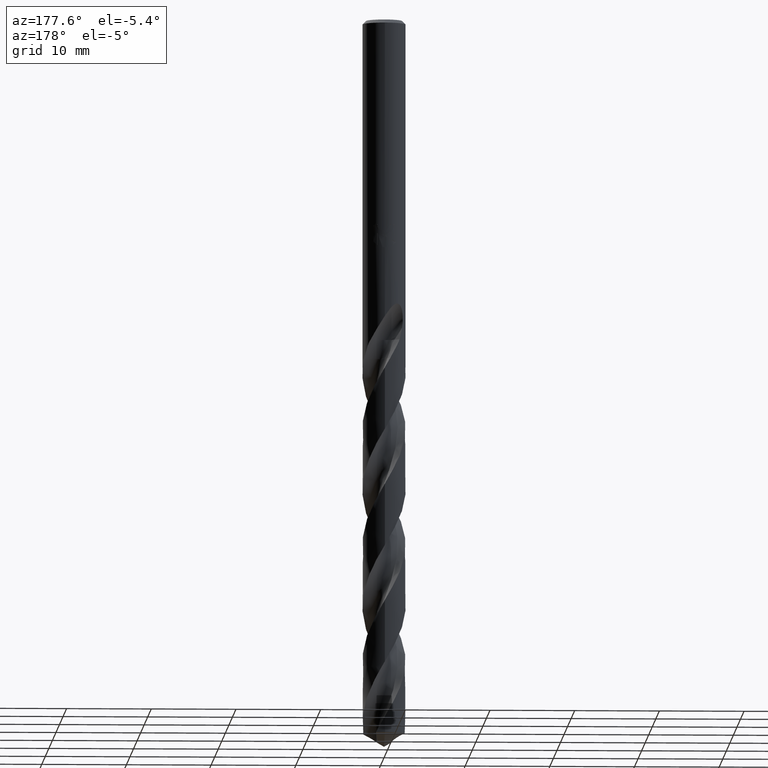
[diagram: clean part render]
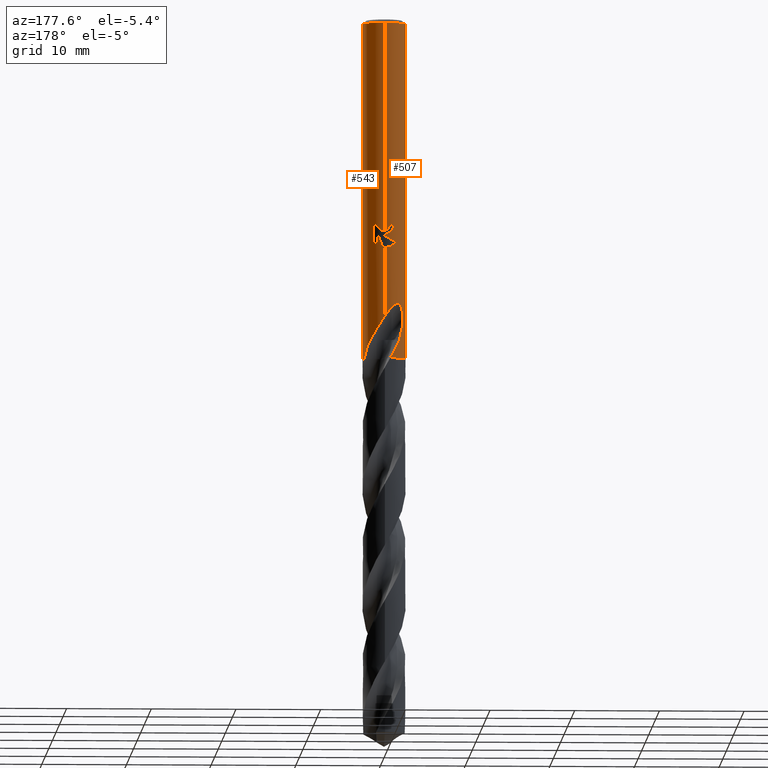
[diagram: same view with one multi-face feature highlighted, each face labeled with its STEP entity id]
A machine part, auxiliary view. The highlighted faces form ONE feature: a constant-radius fillet chain: 2 tangent blend faces with common blend radius 2.55 mm. The faces share edges in the B-rep.
Their STEP definitions:
[1] entity #543 (Cylinder):
#293=VERTEX_POINT('',#832);
#295=VERTEX_POINT('',#834);
#299=EDGE_CURVE('',#295,#651,#838,.T.);
#301=EDGE_CURVE('',#625,#741,#840,.T.);
#303=VERTEX_POINT('',#842);
#317=EDGE_CURVE('',#651,#659,#856,.T.);
#333=VERTEX_POINT('',#877);
#361=EDGE_CURVE('',#333,#561,#907,.T.);
#377=EDGE_CURVE('',#417,#459,#924,.T.);
#379=VERTEX_POINT('',#926);
#417=VERTEX_POINT('',#968);
#457=EDGE_CURVE('',#417,#333,#1013,.T.);
#459=VERTEX_POINT('',#1015);
#465=EDGE_CURVE('',#561,#295,#1021,.T.);
#493=EDGE_CURVE('',#719,#691,#1054,.T.);
#517=EDGE_CURVE('',#731,#293,#1081,.T.);
#543=ADVANCED_FACE('',(#1109),#1110,.T.);
#553=EDGE_CURVE('',#741,#459,#1120,.T.);
#561=VERTEX_POINT('',#1128);
#571=EDGE_CURVE('',#379,#731,#1139,.T.);
#577=VERTEX_POINT('',#1145);
#623=VERTEX_POINT('',#1193);
#625=VERTEX_POINT('',#1195);
#651=VERTEX_POINT('',#1224);
#653=EDGE_CURVE('',#623,#577,#1226,.T.);
#659=VERTEX_POINT('',#1232);
#683=EDGE_CURVE('',#303,#691,#1258,.T.);
#691=VERTEX_POINT('',#1267);
#713=EDGE_CURVE('',#719,#577,#1290,.T.);
#717=EDGE_CURVE('',#659,#623,#1294,.T.);
#719=VERTEX_POINT('',#1296);
#731=VERTEX_POINT('',#1310);
#739=EDGE_CURVE('',#303,#379,#1318,.T.);
#741=VERTEX_POINT('',#1320);
#747=EDGE_CURVE('',#625,#293,#1327,.T.);
#832=CARTESIAN_POINT('',(0.656018928643834,-2.46417109090684,-40.1));
#834=CARTESIAN_POINT('',(0.873560781758956,2.39570272792195,-26.7587351791531));
#838=B_SPLINE_CURVE_WITH_KNOTS('',3,(#1562,#1563,#1564,#1565,#1566,#1567,#1568,#1569),.UNSPECIFIED.,.F.,.F.,(4,2,2,4),(8.27296970472744,8.58870815927253,8.90444661381762,9.54274625815598),.UNSPECIFIED.);
#840=B_SPLINE_CURVE_WITH_KNOTS('',3,(#1572,#1573,#1574,#1575,#1576,#1577,#1578,#1579),.UNSPECIFIED.,.F.,.F.,(4,2,2,4),(0.0,1.32088594608134,1.99224419169783,3.97532380730215),.UNSPECIFIED.);
#842=CARTESIAN_POINT('',(7.57106195499544E-013,-2.55,-35.15000204322));
#856=LINE('',#1736,#1737);
#877=CARTESIAN_POINT('',(0.29010312703583,2.53344433048844,-26.9998328990228));
#907=ELLIPSE('',#2610,7.77238616209292,2.55);
#924=LINE('',#2759,#2760);
#926=CARTESIAN_POINT('',(2.07478751640229,-1.48248330910713,-36.4642704184706));
#968=CARTESIAN_POINT('',(1.0146208194845E-016,2.55,-27.0310253601033));
#1013=B_SPLINE_CURVE_WITH_KNOTS('',3,(#5685,#5686,#5687,#5688,#5689,#5690,#5691,#5692,#5693,#5694,#5695,#5696,#5697,#5698),.UNSPECIFIED.,.F.,.F.,(4,2,2,2,2,2,4),(5.73045896206866,6.37039006809862,6.68816813431113,7.00594620052363,7.32372426673613,7.64150233294864,7.95724082299976),.UNSPECIFIED.);
#1015=CARTESIAN_POINT('',(-7.56218017079844E-013,2.55,-35.15000204322));
#1021=LINE('',#5778,#5779);
#1054=CIRCLE('',#5932,2.55);
#1081=B_SPLINE_CURVE_WITH_KNOTS('',3,(#6189,#6190,#6191,#6192,#6193,#6194,#6195,#6196),.UNSPECIFIED.,.F.,.F.,(4,2,2,4),(0.0,0.717006782918197,1.3745301327303,2.40311813100468),.UNSPECIFIED.);
#1109=FACE_OUTER_BOUND('',#6233,.T.);
#1110=CYLINDRICAL_SURFACE('',#6234,2.55);
#1120=B_SPLINE_CURVE_WITH_KNOTS('',3,(#6263,#6264,#6265,#6266,#6267,#6268,#6269,#6270,#6271,#6272,#6273,#6274,#6275,#6276,#6277,#6278,#6279,#6280,#6281,#6282,#6283,#6284,#6285,#6286,#6287,#6288,#6289,#6290),.UNSPECIFIED.,.F.,.F.,(4,2,2,2,2,2,2,2,2,2,2,2,2,4),(0.0,1.24935961285043,1.93153835635064,2.54942075450046,3.26725165442586,4.12953051732343,4.87688242765254,5.21555645378241,5.46308588244493,5.69732111728528,5.99446247790971,6.42919234259676,7.04721195837792,7.74999240024717),.UNSPECIFIED.);
#1128=CARTESIAN_POINT('',(0.873560781758957,2.39570272792195,-25.3198931596091));
#1139=B_SPLINE_CURVE_WITH_KNOTS('',3,(#6394,#6395,#6396,#6397),.UNSPECIFIED.,.F.,.F.,(4,4),(0.0,1.46553574640604),.UNSPECIFIED.);
#1145=CARTESIAN_POINT('',(-1.16429289846349E-015,2.55,-25.0232688117743));
#1193=CARTESIAN_POINT('',(0.799431726384364,2.42144768988515,-24.000000276873));
#1195=CARTESIAN_POINT('',(2.39978883715491,0.86227231027482,-40.1));
#1224=CARTESIAN_POINT('',(1.33721006514658,2.17125982822662,-26.2901657003257));
#1226=B_SPLINE_CURVE_WITH_KNOTS('',3,(#7580,#7581,#7582,#7583,#7584,#7585,#7586,#7587,#7588,#7589,#7590,#7591,#7592,#7593,#7594,#7595,#7596,#7597,#7598,#7599,#7600,#7601,#7602,#7603,#7604,#7605,#7606),.UNSPECIFIED.,.F.,.F.,(4,2,3,2,2,2,2,2,2,2,2,2,4),(-0.546928008571818,-0.273464004285909,0.0,0.272682226003938,0.545364452007876,0.820193175057678,1.09502189810748,1.3660672093545,1.63711252060152,1.90926984173959,2.18142716287767,2.45309798689982,2.72476881092197),.UNSPECIFIED.);
#1232=CARTESIAN_POINT('',(1.33721006514658,2.17125982822662,-24.5150484364821));
#1258=LINE('',#9582,#9583);
#1267=CARTESIAN_POINT('',(3.12274620224706E-016,-2.55,-0.399999999999999));
#1290=LINE('',#10465,#10466);
#1294=B_SPLINE_CURVE_WITH_KNOTS('',3,(#10471,#10472,#10473,#10474,#10475,#10476,#10477,#10478),.UNSPECIFIED.,.F.,.F.,(4,2,2,4),(0.638299667504419,1.27659933500884,1.59233779963684,1.90807626426484),.UNSPECIFIED.);
#1296=CARTESIAN_POINT('',(0.0,2.55,-0.399999999999999));
#1310=CARTESIAN_POINT('',(1.77244722367009,-1.83328416763583,-37.8606));
#1318=B_SPLINE_CURVE_WITH_KNOTS('',3,(#11290,#11291,#11292,#11293,#11294,#11295,#11296,#11297,#11298,#11299,#11300,#11301,#11302,#11303,#11304,#11305,#11306,#11307,#11308,#11309,#11310,#11311,#11312,#11313,#11314,#11315,#11316,#11317),.UNSPECIFIED.,.F.,.F.,(4,2,2,2,2,2,2,2,2,2,2,2,2,4),(0.0,1.24935961285044,1.93153835635048,2.54942075450004,3.26725165442552,4.12953051732307,4.8768824276522,5.21555645378207,5.46308588244457,5.6973211172849,5.99446247790929,6.42919234259731,7.04721195838079,7.74999240025223),.UNSPECIFIED.);
#1320=CARTESIAN_POINT('',(1.62490083550806,1.96524738258704,-37.8606));
#1327=CIRCLE('',#11327,2.55);
#1562=CARTESIAN_POINT('',(0.602720341406854,2.47774659520589,-26.9040342467484));
#1563=CARTESIAN_POINT('',(0.702624655569435,2.45344452531991,-26.8620422481383));
#1564=CARTESIAN_POINT('',(0.797627132637891,2.42383308165614,-26.8102369555013));
#1565=CARTESIAN_POINT('',(0.972337042330106,2.35918132552788,-26.6919018887118));
#1566=CARTESIAN_POINT('',(1.05205439426646,2.32418204169406,-26.6253643475437));
#1567=CARTESIAN_POINT('',(1.26466285333266,2.21996034781532,-26.4130731353301));
#1568=CARTESIAN_POINT('',(1.38867635719231,2.1411776145583,-26.2340390759421));
#1569=CARTESIAN_POINT('',(1.4725882581066,2.08182223594777,-26.0348217361667));
#1572=CARTESIAN_POINT('',(2.39978883715491,0.862272310274811,-40.1));
#1573=CARTESIAN_POINT('',(2.32445812342853,1.07192511222765,-39.720222498124));
#1574=CARTESIAN_POINT('',(2.22410221491105,1.26496947600276,-39.3577840863991));
#1575=CARTESIAN_POINT('',(2.04503967732465,1.52700728567022,-38.7859420597683));
#1576=CARTESIAN_POINT('',(1.99884309052588,1.58408653444127,-38.6435822846254));
#1577=CARTESIAN_POINT('',(1.88089958909957,1.72741008288669,-38.3043845708463));
#1578=CARTESIAN_POINT('',(1.76995530821957,1.84531381290441,-38.0774165384291));
#1579=CARTESIAN_POINT('',(1.62490083550806,1.96524738258704,-37.8606));
#1736=CARTESIAN_POINT('',(1.33721006514658,2.17125982822662,-25.4026070684039));
#1737=VECTOR('',#12596,1.0);
#2610=AXIS2_PLACEMENT_3D('',#12665,#12666,#12667);
#2759=CARTESIAN_POINT('',(-3.12274620224706E-016,2.55,-37.05));
#2760=VECTOR('',#12678,1.0);
#5685=CARTESIAN_POINT('',(-1.52939254372899,2.04045545091927,-26.0346330793719));
#5686=CARTESIAN_POINT('',(-1.44571516321961,2.10317440439819,-26.2333635916117));
#5687=CARTESIAN_POINT('',(-1.32228848686681,2.18620707421904,-26.4117393689932));
#5688=CARTESIAN_POINT('',(-1.1106896637742,2.29676812751569,-26.6236687551982));
#5689=CARTESIAN_POINT('',(-1.03111920909412,2.33412025797358,-26.6903031851718));
#5690=CARTESIAN_POINT('',(-0.856588263656707,2.40365986538806,-26.8089230655788));
#5691=CARTESIAN_POINT('',(-0.761617234961182,2.4358075958279,-26.860916308323));
#5692=CARTESIAN_POINT('',(-0.561638864282871,2.48953435126709,-26.9453141096912));
#5693=CARTESIAN_POINT('',(-0.456424414236511,2.51113713675704,-26.9777862660452));
#5694=CARTESIAN_POINT('',(-0.242748672564271,2.54070975271748,-27.0207743284381));
#5695=CARTESIAN_POINT('',(-0.13428163925475,2.54866411351335,-27.0312723335086));
#5696=CARTESIAN_POINT('',(0.0768774838957041,2.55101285911495,-27.0312723335086));
#5697=CARTESIAN_POINT('',(0.184832664644226,2.5455501466062,-27.0209060411108));
#5698=CARTESIAN_POINT('',(0.291316102673783,2.5333051392051,-26.9995905689554));
#5778=CARTESIAN_POINT('',(0.873560781758957,2.39570272792195,-26.0393141693811));
#5779=VECTOR('',#12772,1.0);
#5932=AXIS2_PLACEMENT_3D('',#12835,#12836,#12837);
#6189=CARTESIAN_POINT('',(1.77244722367009,-1.83328416763583,-37.8606));
#6190=CARTESIAN_POINT('',(1.69050743906937,-1.91250480690582,-38.0706762784403));
#6191=CARTESIAN_POINT('',(1.6021148243382,-1.98785177567918,-38.2765004901858));
#6192=CARTESIAN_POINT('',(1.40710947719487,-2.12975408567731,-38.6825288037886));
#6193=CARTESIAN_POINT('',(1.30664907754383,-2.19330014961009,-38.8823759599283));
#6194=CARTESIAN_POINT('',(1.02569202446764,-2.34267699692957,-39.4296738293762));
#6195=CARTESIAN_POINT('',(0.844235035154266,-2.41406364138676,-39.7650913667697));
#6196=CARTESIAN_POINT('',(0.656018928643827,-2.46417109090685,-40.1));
#6233=EDGE_LOOP('',(#12904,#12905,#12906,#12907,#12908,#12909,#12910,#12911,#12912,#12913,#12914,#12915,#12916,#12917,#12918,#12919,#12920));
#6234=AXIS2_PLACEMENT_3D('',#12921,#12922,#12923);
#6263=CARTESIAN_POINT('',(1.62490083550806,1.96524738258704,-37.8606));
#6264=CARTESIAN_POINT('',(1.45669338031003,2.10432424227997,-37.505921060011));
#6265=CARTESIAN_POINT('',(1.26329282268803,2.22795392363681,-37.1752460080513));
#6266=CARTESIAN_POINT('',(0.926059863963445,2.37948797834111,-36.6228305933092));
#6267=CARTESIAN_POINT('',(0.804707708838646,2.42307855916641,-36.4284724289745));
#6268=CARTESIAN_POINT('',(0.569785261369433,2.48822620062819,-36.0522453289005));
#6269=CARTESIAN_POINT('',(0.457263904156275,2.5112427100234,-35.8721300689187));
#6270=CARTESIAN_POINT('',(0.213702551379138,2.5444612321252,-35.4839337875907));
#6271=CARTESIAN_POINT('',(0.0806280975477724,2.55226003480914,-35.2728141637524));
#6272=CARTESIAN_POINT('',(-0.214896144172113,2.54604382693197,-34.8211596554812));
#6273=CARTESIAN_POINT('',(-0.390112134702434,2.52681712314374,-34.5641633105317));
#6274=CARTESIAN_POINT('',(-0.727993527751674,2.44917046311251,-34.1403940501317));
#6275=CARTESIAN_POINT('',(-0.914929811528091,2.39001349986102,-33.9336112017254));
#6276=CARTESIAN_POINT('',(-1.19785599497993,2.25327402243575,-33.7399799554091));
#6277=CARTESIAN_POINT('',(-1.29150639456485,2.20165174678138,-33.6921259434389));
#6278=CARTESIAN_POINT('',(-1.45560342999806,2.095360205247,-33.6553654798896));
#6279=CARTESIAN_POINT('',(-1.52290884093068,2.04695423733336,-33.6546790722435));
#6280=CARTESIAN_POINT('',(-1.64826880519653,1.94724804510426,-33.6868521317766));
#6281=CARTESIAN_POINT('',(-1.7030949990296,1.89909194326957,-33.7170172338096));
#6282=CARTESIAN_POINT('',(-1.81466569523409,1.7935616050469,-33.8114003700712));
#6283=CARTESIAN_POINT('',(-1.86628334890514,1.73887313285198,-33.8810853385635));
#6284=CARTESIAN_POINT('',(-1.97201299416663,1.61945684737339,-34.0719044253321));
#6285=CARTESIAN_POINT('',(-2.0225496571707,1.55442613573128,-34.2134357996926));
#6286=CARTESIAN_POINT('',(-2.11758198328297,1.42384528135434,-34.6094248392795));
#6287=CARTESIAN_POINT('',(-2.15193836814656,1.36822411273319,-34.8914429216083));
#6288=CARTESIAN_POINT('',(-2.17390554000001,1.33308696786573,-35.5656944377644));
#6289=CARTESIAN_POINT('',(-2.1583403623475,1.36554816342147,-35.9890449633595));
#6290=CARTESIAN_POINT('',(-2.07478751640229,1.48248330910713,-36.4642704184706));
#6394=CARTESIAN_POINT('',(2.07478751645491,-1.48248330903348,-36.4642704184996));
#6395=CARTESIAN_POINT('',(1.99257761825434,-1.59753895214003,-36.9318681336159));
#6396=CARTESIAN_POINT('',(1.89349271726727,-1.7162555297129,-37.4022485034159));
#6397=CARTESIAN_POINT('',(1.77244722367009,-1.83328416763583,-37.8606));
#7580=CARTESIAN_POINT('',(0.66484748854523,2.46180377304429,-23.8133209150422));
#7581=CARTESIAN_POINT('',(0.728159491121617,2.44470540542922,-23.8766329176186));
#7582=CARTESIAN_POINT('',(0.783374337562283,2.4270015848028,-23.95692161098));
#7583=CARTESIAN_POINT('',(0.857012539634497,2.40198701459577,-24.1338165741014));
#7584=CARTESIAN_POINT('',(0.875400981188567,2.39503092300164,-24.2304873444915));
#7585=CARTESIAN_POINT('',(0.875400981188567,2.39503092300164,-24.3216420125868));
#7586=CARTESIAN_POINT('',(0.875400981188566,2.39503092300164,-24.4125360879214));
#7587=CARTESIAN_POINT('',(0.857116231736908,2.40194678277552,-24.5089516769407));
#7588=CARTESIAN_POINT('',(0.783860176321492,2.42684151535855,-24.6854598734309));
#7589=CARTESIAN_POINT('',(0.728923765407754,2.44446912664062,-24.7656163230698));
#7590=CARTESIAN_POINT('',(0.602432621445338,2.47868945653594,-24.8926460112105));
#7591=CARTESIAN_POINT('',(0.521997424418926,2.49761939924587,-24.9480838383736));
#7592=CARTESIAN_POINT('',(0.344791766469559,2.52818168103565,-25.0220380424342));
#7593=CARTESIAN_POINT('',(0.24796321643811,2.53956818325601,-25.0405166027747));
#7594=CARTESIAN_POINT('',(0.0663483246940969,2.55073729339058,-25.0405166027747));
#7595=CARTESIAN_POINT('',(-0.0298943452179192,2.55136154204061,-25.0224914484988));
#7596=CARTESIAN_POINT('',(-0.206784219328264,2.54314366034012,-24.9492947980859));
#7597=CARTESIAN_POINT('',(-0.287449216744172,2.53456196703142,-24.8941372955426));
#7598=CARTESIAN_POINT('',(-0.415038170156156,2.51682512373737,-24.7668898244719));
#7599=CARTESIAN_POINT('',(-0.470471899261567,2.50650526224512,-24.6861480431406));
#7600=CARTESIAN_POINT('',(-0.544134754870386,2.4915516939521,-24.5088996337151));
#7601=CARTESIAN_POINT('',(-0.562348199187246,2.48722023610111,-24.4123611196328));
#7602=CARTESIAN_POINT('',(-0.562348199187247,2.48722023610111,-24.2310850712461));
#7603=CARTESIAN_POINT('',(-0.544199157556513,2.49153578615267,-24.1347071659171));
#7604=CARTESIAN_POINT('',(-0.470777126670181,2.50644612082315,-23.9577034573528));
#7605=CARTESIAN_POINT('',(-0.415519783397666,2.5167405475754,-23.877045991896));
#7606=CARTESIAN_POINT('',(-0.35179470654391,2.52561685226554,-23.8133209150422));
#9582=CARTESIAN_POINT('',(3.12274620224706E-016,-2.55,-37.05));
#9583=VECTOR('',#13024,1.0);
#10465=CARTESIAN_POINT('',(-3.12274620224706E-016,2.55,-37.05));
#10466=VECTOR('',#13043,1.0);
#10471=CARTESIAN_POINT('',(1.47258826575283,2.08182223053917,-24.7703924137372));
#10472=CARTESIAN_POINT('',(1.38867636175997,2.14117761178973,-24.5711750669516));
#10473=CARTESIAN_POINT('',(1.26466285337017,2.21996034821006,-24.3921410012587));
#10474=CARTESIAN_POINT('',(1.05205438654083,2.32418204527684,-24.1798497817827));
#10475=CARTESIAN_POINT('',(0.972337031916454,2.35918132993624,-24.1133122385005));
#10476=CARTESIAN_POINT('',(0.797627116334371,2.42383308713452,-23.9949771679437));
#10477=CARTESIAN_POINT('',(0.702624636063435,2.45344453104067,-23.9431718736537));
#10478=CARTESIAN_POINT('',(0.60272031855663,2.47774660076429,-23.9011798737145));
#11290=CARTESIAN_POINT('',(-1.62490083550806,-1.96524738258704,-37.8606));
#11291=CARTESIAN_POINT('',(-1.45669338031003,-2.10432424227997,-37.505921060011));
#11292=CARTESIAN_POINT('',(-1.26329282268802,-2.22795392363682,-37.1752460080513));
#11293=CARTESIAN_POINT('',(-0.926059863963478,-2.37948797834109,-36.6228305933093));
#11294=CARTESIAN_POINT('',(-0.804707708838718,-2.42307855916639,-36.4284724289746));
#11295=CARTESIAN_POINT('',(-0.569785261369389,-2.48822620062821,-36.0522453289005));
#11296=CARTESIAN_POINT('',(-0.457263904156182,-2.51124271002341,-35.8721300689185));
#11297=CARTESIAN_POINT('',(-0.213702551379176,-2.54446123212519,-35.4839337875907));
#11298=CARTESIAN_POINT('',(-0.0806280975477904,-2.55226003480915,-35.2728141637524));
#11299=CARTESIAN_POINT('',(0.214896144172117,-2.54604382693197,-34.8211596554812));
#11300=CARTESIAN_POINT('',(0.390112134702434,-2.52681712314374,-34.5641633105317));
#11301=CARTESIAN_POINT('',(0.727993527751679,-2.4491704631125,-34.1403940501317));
#11302=CARTESIAN_POINT('',(0.914929811528093,-2.39001349986102,-33.9336112017254));
#11303=CARTESIAN_POINT('',(1.19785599497992,-2.25327402243575,-33.7399799554091));
#11304=CARTESIAN_POINT('',(1.29150639456485,-2.20165174678138,-33.6921259434389));
#11305=CARTESIAN_POINT('',(1.45560342999805,-2.09536020524701,-33.6553654798896));
#11306=CARTESIAN_POINT('',(1.52290884093068,-2.04695423733336,-33.6546790722435));
#11307=CARTESIAN_POINT('',(1.64826880519653,-1.94724804510426,-33.6868521317766));
#11308=CARTESIAN_POINT('',(1.7030949990296,-1.89909194326958,-33.7170172338096));
#11309=CARTESIAN_POINT('',(1.81466569523409,-1.7935616050469,-33.8114003700712));
#11310=CARTESIAN_POINT('',(1.86628334890514,-1.73887313285198,-33.8810853385635));
#11311=CARTESIAN_POINT('',(1.97201299416678,-1.61945684737322,-34.0719044253324));
#11312=CARTESIAN_POINT('',(2.0225496571708,-1.55442613573115,-34.2134357996931));
#11313=CARTESIAN_POINT('',(2.11758198328291,-1.42384528135442,-34.6094248392793));
#11314=CARTESIAN_POINT('',(2.15193836814655,-1.3682241127332,-34.891442921608));
#11315=CARTESIAN_POINT('',(2.17390554000001,-1.33308696786573,-35.5656944377645));
#11316=CARTESIAN_POINT('',(2.15834036234748,-1.36554816342149,-35.9890449633596));
#11317=CARTESIAN_POINT('',(2.07478751640229,-1.48248330910713,-36.4642704184706));
#11327=AXIS2_PLACEMENT_3D('',#13074,#13075,#13076);
#12596=DIRECTION('',(-0.0,-0.0,1.0));
#12665=CARTESIAN_POINT('',(0.0,0.0,-27.8351219173269));
#12666=DIRECTION('',(0.944648353914092,0.0,-0.328084573619969));
#12667=DIRECTION('',(0.328084573619969,-0.0,0.944648353914092));
#12678=DIRECTION('',(0.0,0.0,-1.0));
#12772=DIRECTION('',(0.0,0.0,-1.0));
#12835=CARTESIAN_POINT('',(0.0,0.0,-0.399999999999999));
#12836=DIRECTION('',(0.0,0.0,-1.0));
#12837=DIRECTION('',(0.0,1.0,0.0));
#12904=ORIENTED_EDGE('',*,*,#713,.F.);
#12905=ORIENTED_EDGE('',*,*,#493,.T.);
#12906=ORIENTED_EDGE('',*,*,#683,.F.);
#12907=ORIENTED_EDGE('',*,*,#739,.T.);
#12908=ORIENTED_EDGE('',*,*,#571,.T.);
#12909=ORIENTED_EDGE('',*,*,#517,.T.);
#12910=ORIENTED_EDGE('',*,*,#747,.F.);
#12911=ORIENTED_EDGE('',*,*,#301,.T.);
#12912=ORIENTED_EDGE('',*,*,#553,.T.);
#12913=ORIENTED_EDGE('',*,*,#377,.F.);
#12914=ORIENTED_EDGE('',*,*,#457,.T.);
#12915=ORIENTED_EDGE('',*,*,#361,.T.);
#12916=ORIENTED_EDGE('',*,*,#465,.T.);
#12917=ORIENTED_EDGE('',*,*,#299,.T.);
#12918=ORIENTED_EDGE('',*,*,#317,.T.);
#12919=ORIENTED_EDGE('',*,*,#717,.T.);
#12920=ORIENTED_EDGE('',*,*,#653,.T.);
#12921=CARTESIAN_POINT('',(0.0,0.0,-37.05));
#12922=DIRECTION('',(-0.0,-0.0,1.0));
#12923=DIRECTION('',(0.0,1.0,0.0));
#13024=DIRECTION('',(-0.0,-0.0,1.0));
#13043=DIRECTION('',(0.0,0.0,-1.0));
#13074=CARTESIAN_POINT('',(0.0,0.0,-40.1));
#13075=DIRECTION('',(0.0,0.0,-1.0));
#13076=DIRECTION('',(0.0,1.0,0.0));
[2] entity #507 (Cylinder):
#303=VERTEX_POINT('',#842);
#335=EDGE_CURVE('',#357,#521,#879,.T.);
#357=VERTEX_POINT('',#903);
#377=EDGE_CURVE('',#417,#459,#924,.T.);
#385=EDGE_CURVE('',#691,#719,#933,.T.);
#395=EDGE_CURVE('',#577,#409,#943,.T.);
#409=VERTEX_POINT('',#959);
#411=EDGE_CURVE('',#591,#797,#961,.T.);
#417=VERTEX_POINT('',#968);
#425=EDGE_CURVE('',#771,#627,#979,.T.);
#459=VERTEX_POINT('',#1015);
#507=ADVANCED_FACE('',(#1069),#1070,.T.);
#509=EDGE_CURVE('',#409,#357,#1072,.T.);
#521=VERTEX_POINT('',#1085);
#545=EDGE_CURVE('',#521,#681,#1112,.T.);
#549=EDGE_CURVE('',#591,#759,#1116,.T.);
#577=VERTEX_POINT('',#1145);
#579=EDGE_CURVE('',#789,#759,#1147,.T.);
#591=VERTEX_POINT('',#1159);
#601=EDGE_CURVE('',#627,#417,#1169,.T.);
#627=VERTEX_POINT('',#1197);
#631=EDGE_CURVE('',#797,#303,#1201,.T.);
#639=EDGE_CURVE('',#805,#789,#1210,.T.);
#673=EDGE_CURVE('',#459,#805,#1247,.T.);
#681=VERTEX_POINT('',#1256);
#683=EDGE_CURVE('',#303,#691,#1258,.T.);
#691=VERTEX_POINT('',#1267);
#713=EDGE_CURVE('',#719,#577,#1290,.T.);
#719=VERTEX_POINT('',#1296);
#759=VERTEX_POINT('',#1341);
#765=EDGE_CURVE('',#681,#771,#1348,.T.);
#771=VERTEX_POINT('',#1354);
#789=VERTEX_POINT('',#1375);
#797=VERTEX_POINT('',#1383);
#805=VERTEX_POINT('',#1392);
#842=CARTESIAN_POINT('',(7.57106195499544E-013,-2.55,-35.15000204322));
#879=CIRCLE('',#2031,2.55);
#903=CARTESIAN_POINT('',(-0.562333990228013,2.48722344863389,-24.3171221986971));
#924=LINE('',#2759,#2760);
#933=CIRCLE('',#3175,2.55);
#943=B_SPLINE_CURVE_WITH_KNOTS('',3,(#3331,#3332,#3333,#3334,#3335,#3336,#3337,#3338,#3339,#3340,#3341,#3342,#3343,#3344,#3345,#3346,#3347,#3348,#3349,#3350,#3351,#3352,#3353,#3354,#3355,#3356,#3357),.UNSPECIFIED.,.F.,.F.,(4,2,3,2,2,2,2,2,2,2,2,2,4),(-0.546928008571818,-0.273464004285909,0.0,0.272682226003938,0.545364452007876,0.820193175057678,1.09502189810748,1.3660672093545,1.63711252060152,1.90926984173959,2.18142716287767,2.45309798689982,2.72476881092197),.UNSPECIFIED.);
#959=CARTESIAN_POINT('',(-0.486378944383046,2.50318507555091,-24.6432837483006));
#961=B_SPLINE_CURVE_WITH_KNOTS('',3,(#3907,#3908,#3909,#3910,#3911,#3912,#3913,#3914),.UNSPECIFIED.,.F.,.F.,(4,2,2,4),(0.0,1.32088594534775,1.99224419083507,3.97532379312663),.UNSPECIFIED.);
#968=CARTESIAN_POINT('',(1.0146208194845E-016,2.55,-27.0310253601033));
#979=ELLIPSE('',#5254,2.84306750170929,2.55);
#1015=CARTESIAN_POINT('',(-7.56218017079844E-013,2.55,-35.15000204322));
#1069=FACE_OUTER_BOUND('',#6023,.T.);
#1070=CYLINDRICAL_SURFACE('',#6024,2.55);
#1072=B_SPLINE_CURVE_WITH_KNOTS('',3,(#6027,#6028,#6029,#6030,#6031,#6032,#6033,#6034,#6035,#6036,#6037,#6038,#6039,#6040,#6041,#6042,#6043,#6044,#6045,#6046,#6047,#6048,#6049,#6050,#6051,#6052,#6053),.UNSPECIFIED.,.F.,.F.,(4,2,3,2,2,2,2,2,2,2,2,2,4),(-0.546928008571818,-0.273464004285909,0.0,0.272682226003938,0.545364452007876,0.820193175057678,1.09502189810748,1.3660672093545,1.63711252060152,1.90926984173959,2.18142716287767,2.45309798689982,2.72476881092197),.UNSPECIFIED.);
#1085=CARTESIAN_POINT('',(-1.0350734039088,2.33047700021276,-24.3171221986971));
#1112=B_SPLINE_CURVE_WITH_KNOTS('',3,(#6237,#6238,#6239,#6240,#6241,#6242,#6243,#6244,#6245,#6246,#6247,#6248,#6249,#6250,#6251,#6252),.UNSPECIFIED.,.F.,.F.,(4,2,2,2,2,2,2,4),(3.40456646310992,3.63093216842028,3.85729787373065,4.08366357904102,4.53639498966175,4.98511114005673,5.43382729045171,5.89282539333501),.UNSPECIFIED.);
#1116=CIRCLE('',#6258,2.55);
#1145=CARTESIAN_POINT('',(-1.16429289846349E-015,2.55,-25.0232688117743));
#1147=B_SPLINE_CURVE_WITH_KNOTS('',3,(#6408,#6409,#6410,#6411,#6412,#6413,#6414,#6415),.UNSPECIFIED.,.F.,.F.,(4,2,2,4),(0.0,0.717006782895492,1.37453013216197,2.40311813146102),.UNSPECIFIED.);
#1159=CARTESIAN_POINT('',(-2.3997888371549,-0.86227231027484,-40.1));
#1169=B_SPLINE_CURVE_WITH_KNOTS('',3,(#6609,#6610,#6611,#6612,#6613,#6614,#6615,#6616,#6617,#6618,#6619,#6620,#6621,#6622),.UNSPECIFIED.,.F.,.F.,(4,2,2,2,2,2,4),(5.73045896206866,6.37039006809862,6.68816813431113,7.00594620052363,7.32372426673613,7.64150233294864,7.95724082299976),.UNSPECIFIED.);
#1197=CARTESIAN_POINT('',(-1.337052752443,2.17135670427146,-26.3720803908795));
#1201=B_SPLINE_CURVE_WITH_KNOTS('',3,(#6709,#6710,#6711,#6712,#6713,#6714,#6715,#6716,#6717,#6718,#6719,#6720,#6721,#6722,#6723,#6724,#6725,#6726,#6727,#6728,#6729,#6730,#6731,#6732,#6733,#6734,#6735,#6736),.UNSPECIFIED.,.F.,.F.,(4,2,2,2,2,2,2,2,2,2,2,2,2,4),(0.0,1.24935961285044,1.93153835635048,2.54942075450004,3.26725165442552,4.12953051732307,4.8768824276522,5.21555645378207,5.46308588244457,5.6973211172849,5.99446247790929,6.42919234259731,7.04721195838079,7.74999240025223),.UNSPECIFIED.);
#1210=B_SPLINE_CURVE_WITH_KNOTS('',3,(#7531,#7532,#7533,#7534),.UNSPECIFIED.,.F.,.F.,(4,4),(0.0,1.46553574640604),.UNSPECIFIED.);
#1247=B_SPLINE_CURVE_WITH_KNOTS('',3,(#8761,#8762,#8763,#8764,#8765,#8766,#8767,#8768,#8769,#8770,#8771,#8772,#8773,#8774,#8775,#8776,#8777,#8778,#8779,#8780,#8781,#8782,#8783,#8784,#8785,#8786,#8787,#8788),.UNSPECIFIED.,.F.,.F.,(4,2,2,2,2,2,2,2,2,2,2,2,2,4),(0.0,1.24935961285043,1.93153835635064,2.54942075450046,3.26725165442586,4.12953051732343,4.87688242765254,5.21555645378241,5.46308588244493,5.69732111728528,5.99446247790971,6.42919234259676,7.04721195837792,7.74999240024717),.UNSPECIFIED.);
#1256=CARTESIAN_POINT('',(-5.89297921147403E-017,2.55,-25.5000801551881));
#1258=LINE('',#9582,#9583);
#1267=CARTESIAN_POINT('',(3.12274620224706E-016,-2.55,-0.399999999999999));
#1290=LINE('',#10465,#10466);
#1296=CARTESIAN_POINT('',(0.0,2.55,-0.399999999999999));
#1341=CARTESIAN_POINT('',(-0.656018928643821,2.46417109090684,-40.1));
#1348=LINE('',#11760,#11761);
#1354=CARTESIAN_POINT('',(-3.12274620224706E-016,2.55,-25.7128911336578));
#1375=CARTESIAN_POINT('',(-1.77244722367009,1.83328416763583,-37.8606));
#1383=CARTESIAN_POINT('',(-1.62490083550806,-1.96524738258704,-37.8606));
#1392=CARTESIAN_POINT('',(-2.07478751640229,1.48248330910713,-36.4642704184706));
#2031=AXIS2_PLACEMENT_3D('',#12638,#12639,#12640);
#2759=CARTESIAN_POINT('',(-3.12274620224706E-016,2.55,-37.05));
#2760=VECTOR('',#12678,1.0);
#3175=AXIS2_PLACEMENT_3D('',#12685,#12686,#12687);
#3331=CARTESIAN_POINT('',(0.66484748854523,2.46180377304429,-23.8133209150422));
#3332=CARTESIAN_POINT('',(0.728159491121617,2.44470540542922,-23.8766329176186));
#3333=CARTESIAN_POINT('',(0.783374337562283,2.4270015848028,-23.95692161098));
#3334=CARTESIAN_POINT('',(0.857012539634497,2.40198701459577,-24.1338165741014));
#3335=CARTESIAN_POINT('',(0.875400981188567,2.39503092300164,-24.2304873444915));
#3336=CARTESIAN_POINT('',(0.875400981188567,2.39503092300164,-24.3216420125868));
#3337=CARTESIAN_POINT('',(0.875400981188566,2.39503092300164,-24.4125360879214));
#3338=CARTESIAN_POINT('',(0.857116231736908,2.40194678277552,-24.5089516769407));
#3339=CARTESIAN_POINT('',(0.783860176321492,2.42684151535855,-24.6854598734309));
#3340=CARTESIAN_POINT('',(0.728923765407754,2.44446912664062,-24.7656163230698));
#3341=CARTESIAN_POINT('',(0.602432621445338,2.47868945653594,-24.8926460112105));
#3342=CARTESIAN_POINT('',(0.521997424418926,2.49761939924587,-24.9480838383736));
#3343=CARTESIAN_POINT('',(0.344791766469559,2.52818168103565,-25.0220380424342));
#3344=CARTESIAN_POINT('',(0.24796321643811,2.53956818325601,-25.0405166027747));
#3345=CARTESIAN_POINT('',(0.0663483246940969,2.55073729339058,-25.0405166027747));
#3346=CARTESIAN_POINT('',(-0.0298943452179192,2.55136154204061,-25.0224914484988));
#3347=CARTESIAN_POINT('',(-0.206784219328264,2.54314366034012,-24.9492947980859));
#3348=CARTESIAN_POINT('',(-0.287449216744172,2.53456196703142,-24.8941372955426));
#3349=CARTESIAN_POINT('',(-0.415038170156156,2.51682512373737,-24.7668898244719));
#3350=CARTESIAN_POINT('',(-0.470471899261567,2.50650526224512,-24.6861480431406));
#3351=CARTESIAN_POINT('',(-0.544134754870386,2.4915516939521,-24.5088996337151));
#3352=CARTESIAN_POINT('',(-0.562348199187246,2.48722023610111,-24.4123611196328));
#3353=CARTESIAN_POINT('',(-0.562348199187247,2.48722023610111,-24.2310850712461));
#3354=CARTESIAN_POINT('',(-0.544199157556513,2.49153578615267,-24.1347071659171));
#3355=CARTESIAN_POINT('',(-0.470777126670181,2.50644612082315,-23.9577034573528));
#3356=CARTESIAN_POINT('',(-0.415519783397666,2.5167405475754,-23.877045991896));
#3357=CARTESIAN_POINT('',(-0.35179470654391,2.52561685226554,-23.8133209150422));
#3907=CARTESIAN_POINT('',(-2.3997888371549,-0.86227231027484,-40.1));
#3908=CARTESIAN_POINT('',(-2.32445812347036,-1.07192511211125,-39.7202224983349));
#3909=CARTESIAN_POINT('',(-2.2241022149927,-1.26496947588302,-39.3577840866601));
#3910=CARTESIAN_POINT('',(-2.04503967726283,-1.52700728576085,-38.7859420595706));
#3911=CARTESIAN_POINT('',(-1.99884309049238,-1.58408653449101,-38.6435822844818));
#3912=CARTESIAN_POINT('',(-1.88089958898856,-1.72741008299485,-38.3043845706666));
#3913=CARTESIAN_POINT('',(-1.76995530812565,-1.84531381298206,-38.0774165382887));
#3914=CARTESIAN_POINT('',(-1.62490083550806,-1.96524738258704,-37.8606));
#5254=AXIS2_PLACEMENT_3D('',#12732,#12733,#12734);
#6023=EDGE_LOOP('',(#12852,#12853,#12854,#12855,#12856,#12857,#12858,#12859,#12860,#12861,#12862,#12863,#12864,#12865,#12866,#12867,#12868));
#6024=AXIS2_PLACEMENT_3D('',#12869,#12870,#12871);
#6027=CARTESIAN_POINT('',(0.66484748854523,2.46180377304429,-23.8133209150422));
#6028=CARTESIAN_POINT('',(0.728159491121617,2.44470540542922,-23.8766329176186));
#6029=CARTESIAN_POINT('',(0.783374337562283,2.4270015848028,-23.95692161098));
#6030=CARTESIAN_POINT('',(0.857012539634497,2.40198701459577,-24.1338165741014));
#6031=CARTESIAN_POINT('',(0.875400981188567,2.39503092300164,-24.2304873444915));
#6032=CARTESIAN_POINT('',(0.875400981188567,2.39503092300164,-24.3216420125868));
#6033=CARTESIAN_POINT('',(0.875400981188566,2.39503092300164,-24.4125360879214));
#6034=CARTESIAN_POINT('',(0.857116231736908,2.40194678277552,-24.5089516769407));
#6035=CARTESIAN_POINT('',(0.783860176321492,2.42684151535855,-24.6854598734309));
#6036=CARTESIAN_POINT('',(0.728923765407754,2.44446912664062,-24.7656163230698));
#6037=CARTESIAN_POINT('',(0.602432621445338,2.47868945653594,-24.8926460112105));
#6038=CARTESIAN_POINT('',(0.521997424418926,2.49761939924587,-24.9480838383736));
#6039=CARTESIAN_POINT('',(0.344791766469559,2.52818168103565,-25.0220380424342));
#6040=CARTESIAN_POINT('',(0.24796321643811,2.53956818325601,-25.0405166027747));
#6041=CARTESIAN_POINT('',(0.0663483246940969,2.55073729339058,-25.0405166027747));
#6042=CARTESIAN_POINT('',(-0.0298943452179192,2.55136154204061,-25.0224914484988));
#6043=CARTESIAN_POINT('',(-0.206784219328264,2.54314366034012,-24.9492947980859));
#6044=CARTESIAN_POINT('',(-0.287449216744172,2.53456196703142,-24.8941372955426));
#6045=CARTESIAN_POINT('',(-0.415038170156156,2.51682512373737,-24.7668898244719));
#6046=CARTESIAN_POINT('',(-0.470471899261567,2.50650526224512,-24.6861480431406));
#6047=CARTESIAN_POINT('',(-0.544134754870386,2.4915516939521,-24.5088996337151));
#6048=CARTESIAN_POINT('',(-0.562348199187246,2.48722023610111,-24.4123611196328));
#6049=CARTESIAN_POINT('',(-0.562348199187247,2.48722023610111,-24.2310850712461));
#6050=CARTESIAN_POINT('',(-0.544199157556513,2.49153578615267,-24.1347071659171));
#6051=CARTESIAN_POINT('',(-0.470777126670181,2.50644612082315,-23.9577034573528));
#6052=CARTESIAN_POINT('',(-0.415519783397666,2.5167405475754,-23.877045991896));
#6053=CARTESIAN_POINT('',(-0.35179470654391,2.52561685226554,-23.8133209150422));
#6237=CARTESIAN_POINT('',(-1.01251390159901,2.34036655228807,-24.0961877081597));
#6238=CARTESIAN_POINT('',(-1.02777548677533,2.33376392547324,-24.1731522798183));
#6239=CARTESIAN_POINT('',(-1.03510901790186,2.33046118205351,-24.2508466256293));
#6240=CARTESIAN_POINT('',(-1.03510901790186,2.33046118205351,-24.4017570958362));
#6241=CARTESIAN_POINT('',(-1.02777548677533,2.33376392547324,-24.4794514416473));
#6242=CARTESIAN_POINT('',(-0.997252316422689,2.3469691791029,-24.6333805849645));
#6243=CARTESIAN_POINT('',(-0.974073182599157,2.35685305237043,-24.7096190636835));
#6244=CARTESIAN_POINT('',(-0.882702881811928,2.39324771111563,-24.9282489707792));
#6245=CARTESIAN_POINT('',(-0.791523914881433,2.42649116428006,-25.0604235350961));
#6246=CARTESIAN_POINT('',(-0.582607281733028,2.48490012415617,-25.2683465468797));
#6247=CARTESIAN_POINT('',(-0.450698277714345,2.51411725520493,-25.3587739185454));
#6248=CARTESIAN_POINT('',(-0.160131103535409,2.54917095178093,-25.479327832674));
#6249=CARTESIAN_POINT('',(-0.00136230971375423,2.55438249725698,-25.5093686300866));
#6250=CARTESIAN_POINT('',(0.300699355998913,2.53682650250196,-25.5093686300866));
#6251=CARTESIAN_POINT('',(0.461082316825695,2.51245081783262,-25.4780790302888));
#6252=CARTESIAN_POINT('',(0.606793074483244,2.47675234223351,-25.4167683329767));
#6258=AXIS2_PLACEMENT_3D('',#12927,#12928,#12929);
#6408=CARTESIAN_POINT('',(-1.77244722367009,1.83328416763583,-37.8606));
#6409=CARTESIAN_POINT('',(-1.69050743907197,1.91250480690331,-38.0706762784336));
#6410=CARTESIAN_POINT('',(-1.6021148243409,1.98785177567722,-38.2765004901802));
#6411=CARTESIAN_POINT('',(-1.40710947726685,2.12975408562493,-38.6825288036388));
#6412=CARTESIAN_POINT('',(-1.30664907772744,2.19330014949207,-38.8823759595574));
#6413=CARTESIAN_POINT('',(-1.02569202470559,2.34267699683498,-39.4296738289333));
#6414=CARTESIAN_POINT('',(-0.844235035282798,2.41406364135253,-39.765091366541));
#6415=CARTESIAN_POINT('',(-0.656018928643816,2.46417109090684,-40.1));
#6609=CARTESIAN_POINT('',(-1.52939254372899,2.04045545091927,-26.0346330793719));
#6610=CARTESIAN_POINT('',(-1.44571516321961,2.10317440439819,-26.2333635916117));
#6611=CARTESIAN_POINT('',(-1.32228848686681,2.18620707421904,-26.4117393689932));
#6612=CARTESIAN_POINT('',(-1.1106896637742,2.29676812751569,-26.6236687551982));
#6613=CARTESIAN_POINT('',(-1.03111920909412,2.33412025797358,-26.6903031851718));
#6614=CARTESIAN_POINT('',(-0.856588263656707,2.40365986538806,-26.8089230655788));
#6615=CARTESIAN_POINT('',(-0.761617234961182,2.4358075958279,-26.860916308323));
#6616=CARTESIAN_POINT('',(-0.561638864282871,2.48953435126709,-26.9453141096912));
#6617=CARTESIAN_POINT('',(-0.456424414236511,2.51113713675704,-26.9777862660452));
#6618=CARTESIAN_POINT('',(-0.242748672564271,2.54070975271748,-27.0207743284381));
#6619=CARTESIAN_POINT('',(-0.13428163925475,2.54866411351335,-27.0312723335086));
#6620=CARTESIAN_POINT('',(0.0768774838957041,2.55101285911495,-27.0312723335086));
#6621=CARTESIAN_POINT('',(0.184832664644226,2.5455501466062,-27.0209060411108));
#6622=CARTESIAN_POINT('',(0.291316102673783,2.5333051392051,-26.9995905689554));
#6709=CARTESIAN_POINT('',(-1.62490083550806,-1.96524738258704,-37.8606));
#6710=CARTESIAN_POINT('',(-1.45669338031003,-2.10432424227997,-37.505921060011));
#6711=CARTESIAN_POINT('',(-1.26329282268802,-2.22795392363682,-37.1752460080513));
#6712=CARTESIAN_POINT('',(-0.926059863963478,-2.37948797834109,-36.6228305933093));
#6713=CARTESIAN_POINT('',(-0.804707708838718,-2.42307855916639,-36.4284724289746));
#6714=CARTESIAN_POINT('',(-0.569785261369389,-2.48822620062821,-36.0522453289005));
#6715=CARTESIAN_POINT('',(-0.457263904156182,-2.51124271002341,-35.8721300689185));
#6716=CARTESIAN_POINT('',(-0.213702551379176,-2.54446123212519,-35.4839337875907));
#6717=CARTESIAN_POINT('',(-0.0806280975477904,-2.55226003480915,-35.2728141637524));
#6718=CARTESIAN_POINT('',(0.214896144172117,-2.54604382693197,-34.8211596554812));
#6719=CARTESIAN_POINT('',(0.390112134702434,-2.52681712314374,-34.5641633105317));
#6720=CARTESIAN_POINT('',(0.727993527751679,-2.4491704631125,-34.1403940501317));
#6721=CARTESIAN_POINT('',(0.914929811528093,-2.39001349986102,-33.9336112017254));
#6722=CARTESIAN_POINT('',(1.19785599497992,-2.25327402243575,-33.7399799554091));
#6723=CARTESIAN_POINT('',(1.29150639456485,-2.20165174678138,-33.6921259434389));
#6724=CARTESIAN_POINT('',(1.45560342999805,-2.09536020524701,-33.6553654798896));
#6725=CARTESIAN_POINT('',(1.52290884093068,-2.04695423733336,-33.6546790722435));
#6726=CARTESIAN_POINT('',(1.64826880519653,-1.94724804510426,-33.6868521317766));
#6727=CARTESIAN_POINT('',(1.7030949990296,-1.89909194326958,-33.7170172338096));
#6728=CARTESIAN_POINT('',(1.81466569523409,-1.7935616050469,-33.8114003700712));
#6729=CARTESIAN_POINT('',(1.86628334890514,-1.73887313285198,-33.8810853385635));
#6730=CARTESIAN_POINT('',(1.97201299416678,-1.61945684737322,-34.0719044253324));
#6731=CARTESIAN_POINT('',(2.0225496571708,-1.55442613573115,-34.2134357996931));
#6732=CARTESIAN_POINT('',(2.11758198328291,-1.42384528135442,-34.6094248392793));
#6733=CARTESIAN_POINT('',(2.15193836814655,-1.3682241127332,-34.891442921608));
#6734=CARTESIAN_POINT('',(2.17390554000001,-1.33308696786573,-35.5656944377645));
#6735=CARTESIAN_POINT('',(2.15834036234748,-1.36554816342149,-35.9890449633596));
#6736=CARTESIAN_POINT('',(2.07478751640229,-1.48248330910713,-36.4642704184706));
#7531=CARTESIAN_POINT('',(-2.07478751645491,1.48248330903348,-36.4642704184996));
#7532=CARTESIAN_POINT('',(-1.99257761825434,1.59753895214003,-36.9318681336159));
#7533=CARTESIAN_POINT('',(-1.89349271726727,1.7162555297129,-37.4022485034159));
#7534=CARTESIAN_POINT('',(-1.77244722367009,1.83328416763583,-37.8606));
#8761=CARTESIAN_POINT('',(1.62490083550806,1.96524738258704,-37.8606));
#8762=CARTESIAN_POINT('',(1.45669338031003,2.10432424227997,-37.505921060011));
#8763=CARTESIAN_POINT('',(1.26329282268803,2.22795392363681,-37.1752460080513));
#8764=CARTESIAN_POINT('',(0.926059863963445,2.37948797834111,-36.6228305933092));
#8765=CARTESIAN_POINT('',(0.804707708838646,2.42307855916641,-36.4284724289745));
#8766=CARTESIAN_POINT('',(0.569785261369433,2.48822620062819,-36.0522453289005));
#8767=CARTESIAN_POINT('',(0.457263904156275,2.5112427100234,-35.8721300689187));
#8768=CARTESIAN_POINT('',(0.213702551379138,2.5444612321252,-35.4839337875907));
#8769=CARTESIAN_POINT('',(0.0806280975477724,2.55226003480914,-35.2728141637524));
#8770=CARTESIAN_POINT('',(-0.214896144172113,2.54604382693197,-34.8211596554812));
#8771=CARTESIAN_POINT('',(-0.390112134702434,2.52681712314374,-34.5641633105317));
#8772=CARTESIAN_POINT('',(-0.727993527751674,2.44917046311251,-34.1403940501317));
#8773=CARTESIAN_POINT('',(-0.914929811528091,2.39001349986102,-33.9336112017254));
#8774=CARTESIAN_POINT('',(-1.19785599497993,2.25327402243575,-33.7399799554091));
#8775=CARTESIAN_POINT('',(-1.29150639456485,2.20165174678138,-33.6921259434389));
#8776=CARTESIAN_POINT('',(-1.45560342999806,2.095360205247,-33.6553654798896));
#8777=CARTESIAN_POINT('',(-1.52290884093068,2.04695423733336,-33.6546790722435));
#8778=CARTESIAN_POINT('',(-1.64826880519653,1.94724804510426,-33.6868521317766));
#8779=CARTESIAN_POINT('',(-1.7030949990296,1.89909194326957,-33.7170172338096));
#8780=CARTESIAN_POINT('',(-1.81466569523409,1.7935616050469,-33.8114003700712));
#8781=CARTESIAN_POINT('',(-1.86628334890514,1.73887313285198,-33.8810853385635));
#8782=CARTESIAN_POINT('',(-1.97201299416663,1.61945684737339,-34.0719044253321));
#8783=CARTESIAN_POINT('',(-2.0225496571707,1.55442613573128,-34.2134357996926));
#8784=CARTESIAN_POINT('',(-2.11758198328297,1.42384528135434,-34.6094248392795));
#8785=CARTESIAN_POINT('',(-2.15193836814656,1.36822411273319,-34.8914429216083));
#8786=CARTESIAN_POINT('',(-2.17390554000001,1.33308696786573,-35.5656944377644));
#8787=CARTESIAN_POINT('',(-2.1583403623475,1.36554816342147,-35.9890449633595));
#8788=CARTESIAN_POINT('',(-2.07478751640229,1.48248330910713,-36.4642704184706));
#9582=CARTESIAN_POINT('',(3.12274620224706E-016,-2.55,-37.05));
#9583=VECTOR('',#13024,1.0);
#10465=CARTESIAN_POINT('',(-3.12274620224706E-016,2.55,-37.05));
#10466=VECTOR('',#13043,1.0);
#11760=CARTESIAN_POINT('',(-3.12274620224706E-016,2.55,-37.05));
#11761=VECTOR('',#13106,1.0);
#12638=CARTESIAN_POINT('',(0.0,0.0,-24.3171221986971));
#12639=DIRECTION('',(0.0,-0.0,1.0));
#12640=DIRECTION('',(0.0,1.0,0.0));
#12678=DIRECTION('',(0.0,0.0,-1.0));
#12685=CARTESIAN_POINT('',(0.0,0.0,-0.399999999999999));
#12686=DIRECTION('',(0.0,0.0,-1.0));
#12687=DIRECTION('',(0.0,1.0,0.0));
#12732=CARTESIAN_POINT('',(0.0,0.0,-25.7128911336578));
#12733=DIRECTION('',(-0.442195774284071,0.0,0.896918556617774));
#12734=DIRECTION('',(0.896918556617774,-0.0,0.442195774284071));
#12852=ORIENTED_EDGE('',*,*,#713,.T.);
#12853=ORIENTED_EDGE('',*,*,#395,.T.);
#12854=ORIENTED_EDGE('',*,*,#509,.T.);
#12855=ORIENTED_EDGE('',*,*,#335,.T.);
#12856=ORIENTED_EDGE('',*,*,#545,.T.);
#12857=ORIENTED_EDGE('',*,*,#765,.T.);
#12858=ORIENTED_EDGE('',*,*,#425,.T.);
#12859=ORIENTED_EDGE('',*,*,#601,.T.);
#12860=ORIENTED_EDGE('',*,*,#377,.T.);
#12861=ORIENTED_EDGE('',*,*,#673,.T.);
#12862=ORIENTED_EDGE('',*,*,#639,.T.);
#12863=ORIENTED_EDGE('',*,*,#579,.T.);
#12864=ORIENTED_EDGE('',*,*,#549,.F.);
#12865=ORIENTED_EDGE('',*,*,#411,.T.);
#12866=ORIENTED_EDGE('',*,*,#631,.T.);
#12867=ORIENTED_EDGE('',*,*,#683,.T.);
#12868=ORIENTED_EDGE('',*,*,#385,.T.);
#12869=CARTESIAN_POINT('',(0.0,0.0,-37.05));
#12870=DIRECTION('',(-0.0,-0.0,1.0));
#12871=DIRECTION('',(0.0,1.0,0.0));
#12927=CARTESIAN_POINT('',(0.0,0.0,-40.1));
#12928=DIRECTION('',(0.0,0.0,-1.0));
#12929=DIRECTION('',(0.0,1.0,0.0));
#13024=DIRECTION('',(-0.0,-0.0,1.0));
#13043=DIRECTION('',(0.0,0.0,-1.0));
#13106=DIRECTION('',(0.0,0.0,-1.0));